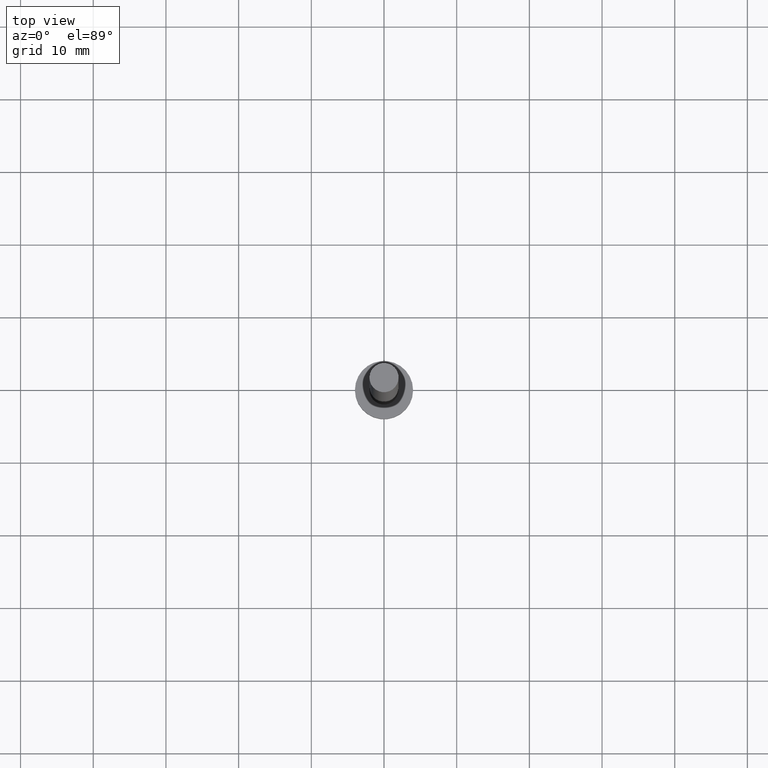
[diagram: clean part render]
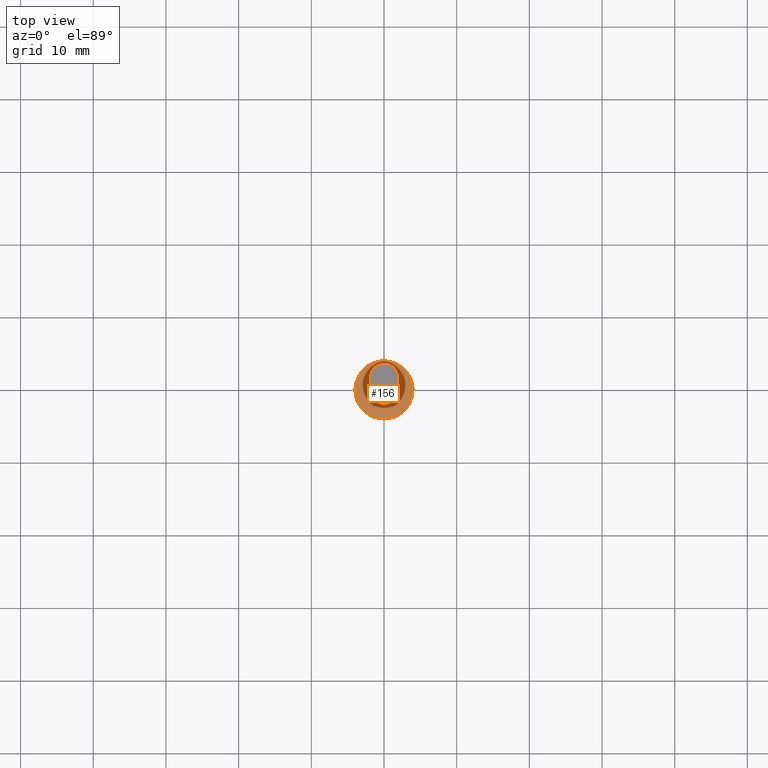
[diagram: same view with one face highlighted and labeled with its STEP entity id]
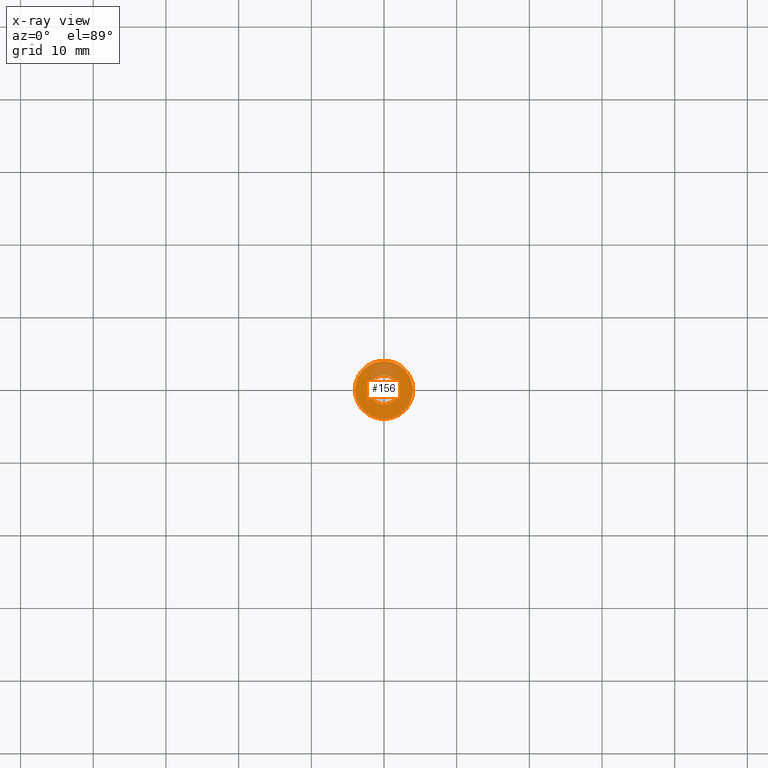
[diagram: x-ray of the same camera — body ghosted, the highlighted face saturated]
A machine part, top view. The second image highlights one B-rep face of the part: STEP entity #156.
The next image is the same camera in x-ray: the body ghosted, the highlighted face saturated — about 18% of this face is hidden behind the body in this view.
In plain terms, the highlighted planar face has unit normal (0, 0, 1).
Its self-contained STEP definition (entity closure, byte-faithful):
#3 = CIRCLE ( 'NONE', #9, 2.000000000000000000 ) ;
#9 = AXIS2_PLACEMENT_3D ( 'NONE', #111, #126, #186 ) ;
#11 = EDGE_CURVE ( 'NONE', #173, #152, #39, .T. ) ;
#25 = DIRECTION ( 'NONE',  ( 1.000000000000000000, 0.000000000000000000, 0.000000000000000000 ) ) ;
#39 = CIRCLE ( 'NONE', #205, 2.000000000000000000 ) ;
#43 = ORIENTED_EDGE ( 'NONE', *, *, #11, .F. ) ;
#47 = EDGE_CURVE ( 'NONE', #162, #147, #65, .T. ) ;
#48 = ORIENTED_EDGE ( 'NONE', *, *, #61, .F. ) ;
#52 = CARTESIAN_POINT ( 'NONE',  ( 0.000000000000000000, 0.000000000000000000, 3.000000000000000000 ) ) ;
#57 = FACE_OUTER_BOUND ( 'NONE', #89, .T. ) ;
#61 = EDGE_CURVE ( 'NONE', #152, #173, #3, .T. ) ;
#62 = DIRECTION ( 'NONE',  ( 1.000000000000000000, 0.000000000000000000, -0.000000000000000000 ) ) ;
#65 = CIRCLE ( 'NONE', #230, 4.000000000000000000 ) ;
#78 = DIRECTION ( 'NONE',  ( 1.000000000000000000, 0.000000000000000000, 0.000000000000000000 ) ) ;
#81 = PLANE ( 'NONE',  #146 ) ;
#89 = EDGE_LOOP ( 'NONE', ( #171, #246 ) ) ;
#93 = AXIS2_PLACEMENT_3D ( 'NONE', #193, #189, #78 ) ;
#107 = DIRECTION ( 'NONE',  ( 0.000000000000000000, 0.000000000000000000, 1.000000000000000000 ) ) ;
#108 = CARTESIAN_POINT ( 'NONE',  ( 0.000000000000000000, 0.000000000000000000, 3.000000000000000000 ) ) ;
#111 = CARTESIAN_POINT ( 'NONE',  ( 0.000000000000000000, 0.000000000000000000, 3.000000000000000000 ) ) ;
#119 = CARTESIAN_POINT ( 'NONE',  ( 4.000000000000000000, 4.898587196589412829E-16, 3.000000000000000000 ) ) ;
#120 = CARTESIAN_POINT ( 'NONE',  ( 2.000000000000000000, 2.449293598294705921E-16, 3.000000000000000000 ) ) ;
#126 = DIRECTION ( 'NONE',  ( 0.000000000000000000, 0.000000000000000000, 1.000000000000000000 ) ) ;
#139 = EDGE_CURVE ( 'NONE', #147, #162, #219, .T. ) ;
#146 = AXIS2_PLACEMENT_3D ( 'NONE', #159, #216, #62 ) ;
#147 = VERTEX_POINT ( 'NONE', #192 ) ;
#152 = VERTEX_POINT ( 'NONE', #251 ) ;
#156 = ADVANCED_FACE ( 'NONE', ( #157, #57 ), #81, .T. ) ;
#157 = FACE_BOUND ( 'NONE', #241, .T. ) ;
#159 = CARTESIAN_POINT ( 'NONE',  ( 0.000000000000000000, 0.000000000000000000, 3.000000000000000000 ) ) ;
#162 = VERTEX_POINT ( 'NONE', #119 ) ;
#171 = ORIENTED_EDGE ( 'NONE', *, *, #139, .T. ) ;
#173 = VERTEX_POINT ( 'NONE', #120 ) ;
#186 = DIRECTION ( 'NONE',  ( 1.000000000000000000, 0.000000000000000000, 0.000000000000000000 ) ) ;
#189 = DIRECTION ( 'NONE',  ( 0.000000000000000000, 0.000000000000000000, 1.000000000000000000 ) ) ;
#192 = CARTESIAN_POINT ( 'NONE',  ( -4.000000000000000000, 0.000000000000000000, 3.000000000000000000 ) ) ;
#193 = CARTESIAN_POINT ( 'NONE',  ( 0.000000000000000000, 0.000000000000000000, 3.000000000000000000 ) ) ;
#205 = AXIS2_PLACEMENT_3D ( 'NONE', #52, #229, #244 ) ;
#216 = DIRECTION ( 'NONE',  ( 0.000000000000000000, 0.000000000000000000, 1.000000000000000000 ) ) ;
#219 = CIRCLE ( 'NONE', #93, 4.000000000000000000 ) ;
#229 = DIRECTION ( 'NONE',  ( 0.000000000000000000, 0.000000000000000000, 1.000000000000000000 ) ) ;
#230 = AXIS2_PLACEMENT_3D ( 'NONE', #108, #107, #25 ) ;
#241 = EDGE_LOOP ( 'NONE', ( #48, #43 ) ) ;
#244 = DIRECTION ( 'NONE',  ( 1.000000000000000000, 0.000000000000000000, 0.000000000000000000 ) ) ;
#246 = ORIENTED_EDGE ( 'NONE', *, *, #47, .T. ) ;
#251 = CARTESIAN_POINT ( 'NONE',  ( -2.000000000000000000, 0.000000000000000000, 3.000000000000000000 ) ) ;